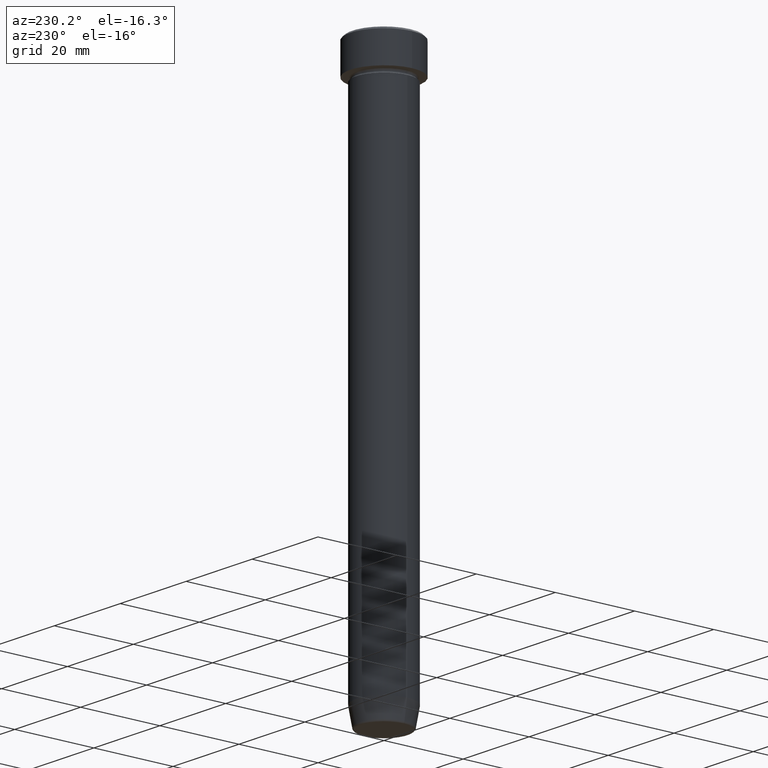
[diagram: clean part render]
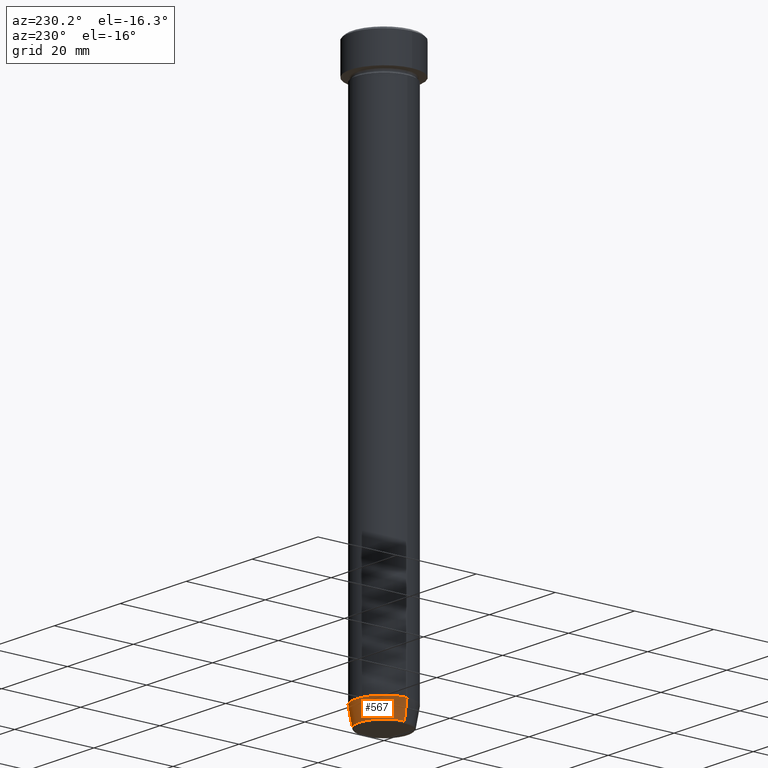
[diagram: same view with one face highlighted and labeled with its STEP entity id]
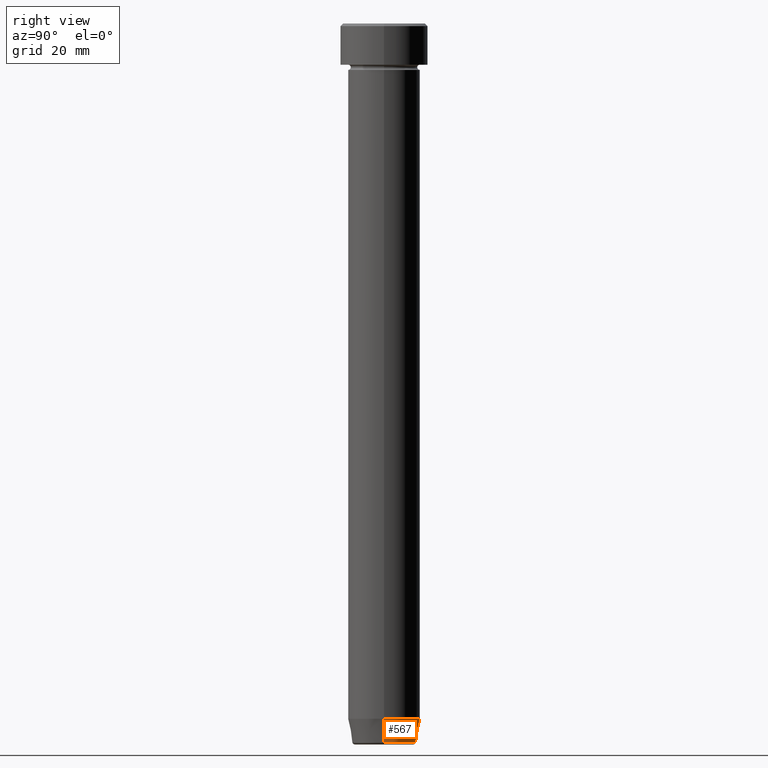
[diagram: same view with one face highlighted and labeled with its STEP entity id]
A machine part, auxiliary view. The second image highlights one B-rep face of the part: STEP entity #567.
A second angle (right view) of the same face is appended — the face is thin or edge-on in the first view.
In plain terms, the highlighted conical surface has half-angle 10 deg.
Its self-contained STEP definition (entity closure, byte-faithful):
#17 = VERTEX_POINT ( 'NONE', #201 ) ;
#24 = CONICAL_SURFACE ( 'NONE', #33, 6.118365096457679009, 0.1745329251994318653 ) ;
#33 = AXIS2_PLACEMENT_3D ( 'NONE', #582, #538, #101 ) ;
#48 = CARTESIAN_POINT ( 'NONE',  ( -6.118365096457679009, 7.492836231391783526E-16, -139.9999999999999716 ) ) ;
#53 = CARTESIAN_POINT ( 'NONE',  ( 6.191219157375146942, 0.000000000000000000, -139.5868240888334526 ) ) ;
#59 = VECTOR ( 'NONE', #529, 1000.000000000000000 ) ;
#65 = EDGE_CURVE ( 'NONE', #541, #274, #145, .T. ) ;
#98 = CARTESIAN_POINT ( 'NONE',  ( 6.118365096457679009, 0.000000000000000000, -139.9999999999999716 ) ) ;
#99 = DIRECTION ( 'NONE',  ( -0.000000000000000000, -0.000000000000000000, 1.000000000000000000 ) ) ;
#101 = DIRECTION ( 'NONE',  ( 1.000000000000000000, 0.000000000000000000, 0.000000000000000000 ) ) ;
#103 = ORIENTED_EDGE ( 'NONE', *, *, #471, .F. ) ;
#112 = CARTESIAN_POINT ( 'NONE',  ( 0.000000000000000000, 0.000000000000000000, -134.9999999999999716 ) ) ;
#116 = ORIENTED_EDGE ( 'NONE', *, *, #205, .F. ) ;
#123 = VERTEX_POINT ( 'NONE', #53 ) ;
#128 = EDGE_CURVE ( 'NONE', #123, #541, #269, .T. ) ;
#139 = CARTESIAN_POINT ( 'NONE',  ( 0.000000000000000000, 0.000000000000000000, -139.5868240888334526 ) ) ;
#145 = LINE ( 'NONE', #48, #428 ) ;
#201 = CARTESIAN_POINT ( 'NONE',  ( 6.999999999999999112, 0.000000000000000000, -134.9999999999999716 ) ) ;
#205 = EDGE_CURVE ( 'NONE', #17, #274, #570, .T. ) ;
#247 = EDGE_LOOP ( 'NONE', ( #501, #325, #116, #103 ) ) ;
#250 = FACE_OUTER_BOUND ( 'NONE', #247, .T. ) ;
#258 = AXIS2_PLACEMENT_3D ( 'NONE', #139, #99, #339 ) ;
#269 = CIRCLE ( 'NONE', #258, 6.191219157375146054 ) ;
#274 = VERTEX_POINT ( 'NONE', #426 ) ;
#302 = LINE ( 'NONE', #98, #59 ) ;
#303 = DIRECTION ( 'NONE',  ( -0.000000000000000000, -0.000000000000000000, 1.000000000000000000 ) ) ;
#325 = ORIENTED_EDGE ( 'NONE', *, *, #65, .T. ) ;
#339 = DIRECTION ( 'NONE',  ( -1.000000000000000000, 0.000000000000000000, 0.000000000000000000 ) ) ;
#341 = AXIS2_PLACEMENT_3D ( 'NONE', #112, #303, #583 ) ;
#343 = DIRECTION ( 'NONE',  ( -0.1736481776669292765, 2.126576849575758356E-17, 0.9848077530122082424 ) ) ;
#426 = CARTESIAN_POINT ( 'NONE',  ( -6.999999999999999112, 8.572527594031472204E-16, -134.9999999999999716 ) ) ;
#428 = VECTOR ( 'NONE', #343, 1000.000000000000000 ) ;
#436 = CARTESIAN_POINT ( 'NONE',  ( -6.191219157375146942, 8.077292158965359378E-16, -139.5868240888334526 ) ) ;
#471 = EDGE_CURVE ( 'NONE', #123, #17, #302, .T. ) ;
#501 = ORIENTED_EDGE ( 'NONE', *, *, #128, .T. ) ;
#529 = DIRECTION ( 'NONE',  ( 0.1736481776669292765, 0.000000000000000000, 0.9848077530122082424 ) ) ;
#538 = DIRECTION ( 'NONE',  ( -0.000000000000000000, -0.000000000000000000, 1.000000000000000000 ) ) ;
#541 = VERTEX_POINT ( 'NONE', #436 ) ;
#567 = ADVANCED_FACE ( 'NONE', ( #250 ), #24, .T. ) ;
#570 = CIRCLE ( 'NONE', #341, 6.999999999999999112 ) ;
#582 = CARTESIAN_POINT ( 'NONE',  ( 0.000000000000000000, 0.000000000000000000, -139.9999999999999716 ) ) ;
#583 = DIRECTION ( 'NONE',  ( 1.000000000000000000, 0.000000000000000000, 0.000000000000000000 ) ) ;